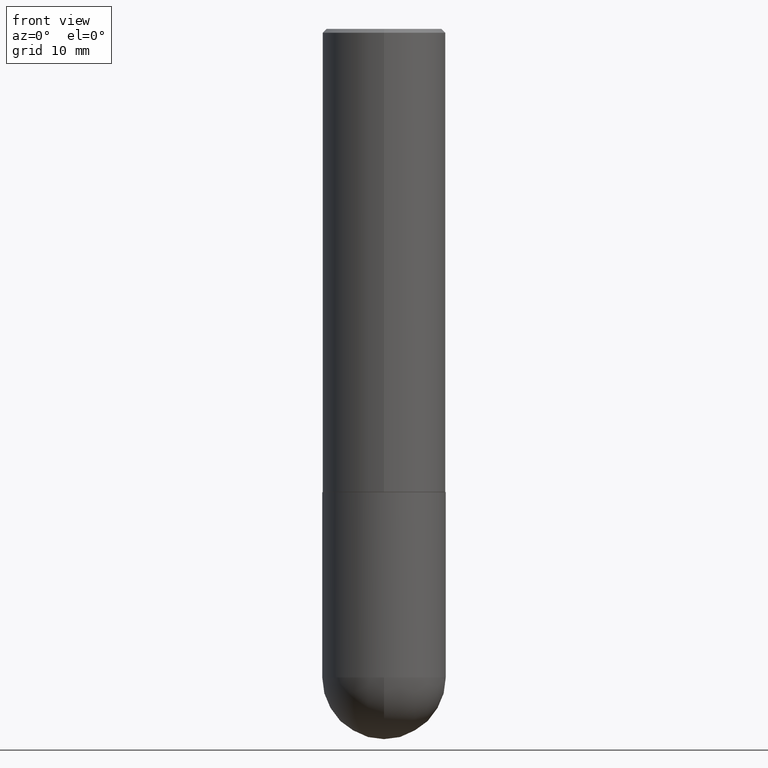
[diagram: clean part render]
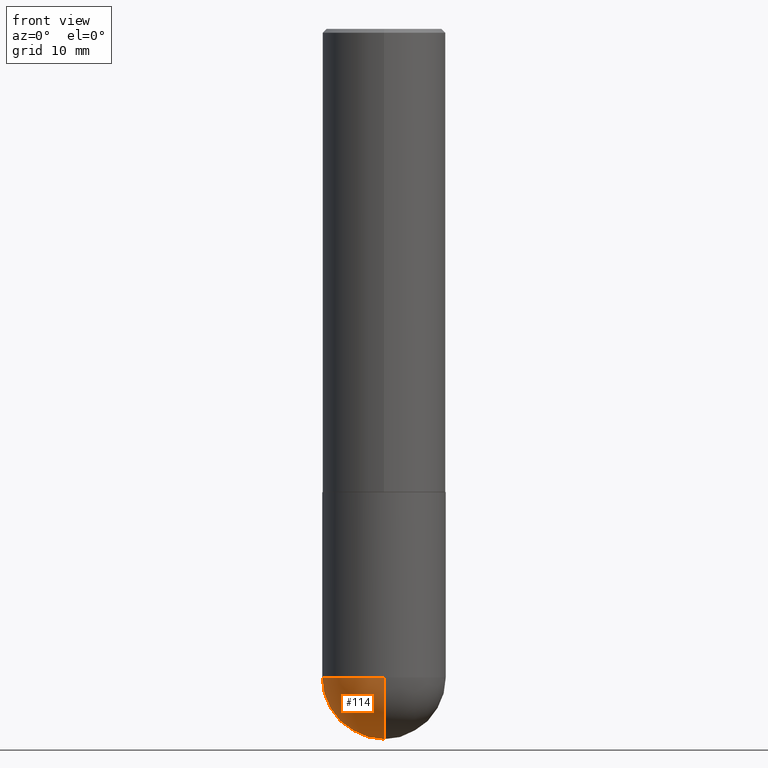
[diagram: same view with one face highlighted and labeled with its STEP entity id]
A machine part, front view. The second image highlights one B-rep face of the part: STEP entity #114.
In plain terms, the highlighted spherical surface has radius 7.9997 mm.
Its self-contained STEP definition (entity closure, byte-faithful):
#2 = CARTESIAN_POINT ( 'NONE',  ( 8.539834969227531055E-29, -1.310104265196035002E-14, -3.621999999999999886 ) ) ;
#3 = CARTESIAN_POINT ( 'NONE',  ( 8.087287615494557476E-29, -1.154650336162122627E-14, -3.307050000000000267 ) ) ;
#5 = VERTEX_POINT ( 'NONE', #86 ) ;
#7 = ORIENTED_EDGE ( 'NONE', *, *, #259, .F. ) ;
#10 = AXIS2_PLACEMENT_3D ( 'NONE', #3, #65, #25 ) ;
#25 = DIRECTION ( 'NONE',  ( 1.000000000000000000, -6.982962677686269866E-15, 0.000000000000000000 ) ) ;
#26 = DIRECTION ( 'NONE',  ( -7.105427357600999492E-15, -1.000000000000000000, 0.000000000000000000 ) ) ;
#48 = DIRECTION ( 'NONE',  ( 6.982962677686264344E-15, 1.000000000000000000, 0.000000000000000000 ) ) ;
#57 = VERTEX_POINT ( 'NONE', #125 ) ;
#65 = DIRECTION ( 'NONE',  ( -2.445468806185136597E-29, 3.491481338843145583E-15, 1.000000000000000000 ) ) ;
#86 = CARTESIAN_POINT ( 'NONE',  ( -2.237854346276355915E-15, -0.3149500000000118871, -3.307049999999999379 ) ) ;
#88 = EDGE_CURVE ( 'NONE', #161, #5, #132, .T. ) ;
#89 = CIRCLE ( 'NONE', #332, 0.3149500000000000077 ) ;
#96 = CARTESIAN_POINT ( 'NONE',  ( 7.756167837580670108E-29, -1.202068572976127498E-14, -3.307049999999999823 ) ) ;
#114 = ADVANCED_FACE ( 'NONE', ( #218 ), #288, .T. ) ;
#117 = ORIENTED_EDGE ( 'NONE', *, *, #88, .F. ) ;
#118 = DIRECTION ( 'NONE',  ( 1.000000000000000000, -6.982962677686269866E-15, 0.000000000000000000 ) ) ;
#125 = CARTESIAN_POINT ( 'NONE',  ( 2.199284095337369546E-15, 0.3149499999999882394, -3.307050000000001599 ) ) ;
#127 = DIRECTION ( 'NONE',  ( -1.000000000000000000, 6.982962677686265133E-15, -4.883557194083112901E-29 ) ) ;
#132 = CIRCLE ( 'NONE', #10, 0.3149500000000000077 ) ;
#138 = AXIS2_PLACEMENT_3D ( 'NONE', #251, #127, #411 ) ;
#157 = EDGE_CURVE ( 'NONE', #57, #161, #89, .T. ) ;
#161 = VERTEX_POINT ( 'NONE', #384 ) ;
#162 = AXIS2_PLACEMENT_3D ( 'NONE', #96, #341, #26 ) ;
#167 = EDGE_LOOP ( 'NONE', ( #7, #372, #117, #224 ) ) ;
#218 = FACE_OUTER_BOUND ( 'NONE', #167, .T. ) ;
#224 = ORIENTED_EDGE ( 'NONE', *, *, #157, .F. ) ;
#226 = AXIS2_PLACEMENT_3D ( 'NONE', #360, #329, #48 ) ;
#251 = CARTESIAN_POINT ( 'NONE',  ( 7.756167837580670108E-29, -1.202068572976127498E-14, -3.307049999999999823 ) ) ;
#259 = EDGE_CURVE ( 'NONE', #274, #57, #397, .T. ) ;
#270 = EDGE_CURVE ( 'NONE', #274, #5, #298, .T. ) ;
#274 = VERTEX_POINT ( 'NONE', #2 ) ;
#288 = SPHERICAL_SURFACE ( 'NONE', #138, 0.3149500000000001743 ) ;
#298 = CIRCLE ( 'NONE', #162, 0.3149500000000001743 ) ;
#329 = DIRECTION ( 'NONE',  ( 1.000000000000000000, -6.982962677686265922E-15, 4.883557194083112340E-29 ) ) ;
#332 = AXIS2_PLACEMENT_3D ( 'NONE', #408, #340, #118 ) ;
#340 = DIRECTION ( 'NONE',  ( -2.445468806185136597E-29, 3.491481338843145583E-15, 1.000000000000000000 ) ) ;
#341 = DIRECTION ( 'NONE',  ( -1.000000000000000000, 7.105427357601001070E-15, -4.926315508542082329E-29 ) ) ;
#360 = CARTESIAN_POINT ( 'NONE',  ( 7.756167837580670108E-29, -1.202068572976127498E-14, -3.307049999999999823 ) ) ;
#372 = ORIENTED_EDGE ( 'NONE', *, *, #270, .T. ) ;
#384 = CARTESIAN_POINT ( 'NONE',  ( -0.3149500000000000077, -7.659185943841817750E-15, -3.307050000000000267 ) ) ;
#397 = CIRCLE ( 'NONE', #226, 0.3149500000000001743 ) ;
#408 = CARTESIAN_POINT ( 'NONE',  ( 8.087287615494557476E-29, -1.154650336162122627E-14, -3.307050000000000267 ) ) ;
#411 = DIRECTION ( 'NONE',  ( 6.982962677686265133E-15, 1.000000000000000000, -3.469564049740291586E-15 ) ) ;